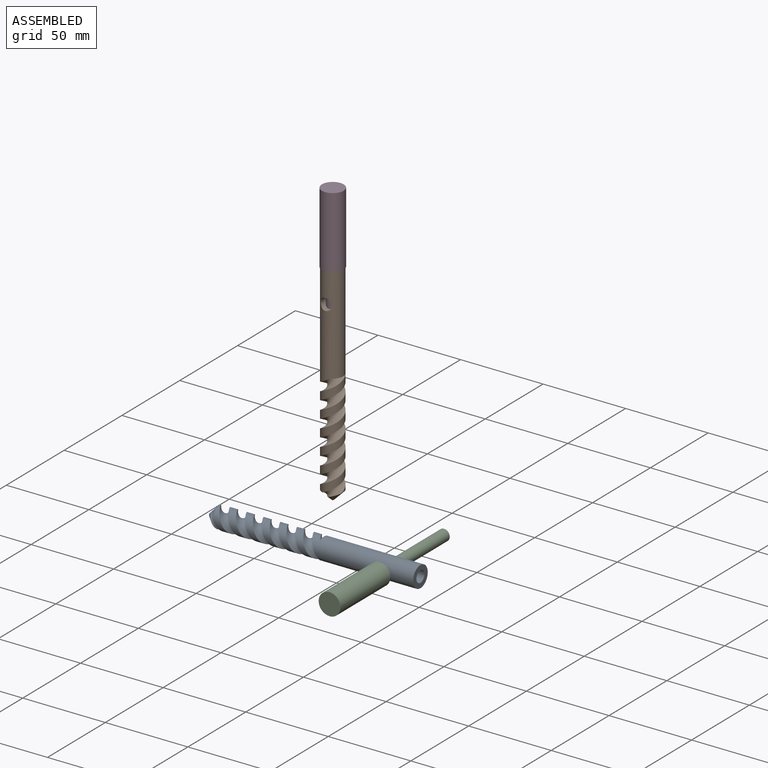
[diagram: assembled view]
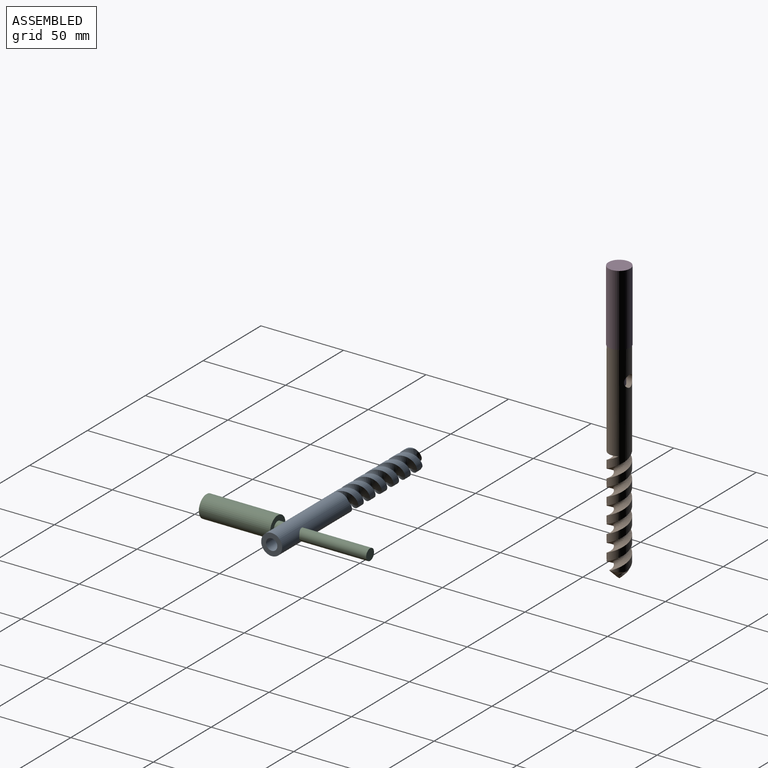
[diagram: assembled view, second angle]
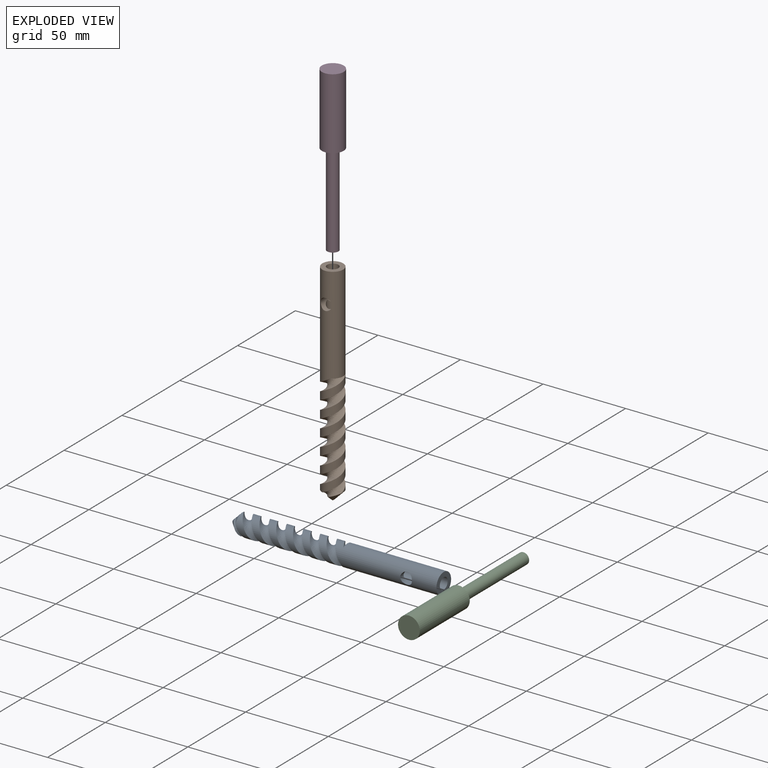
[diagram: exploded view]
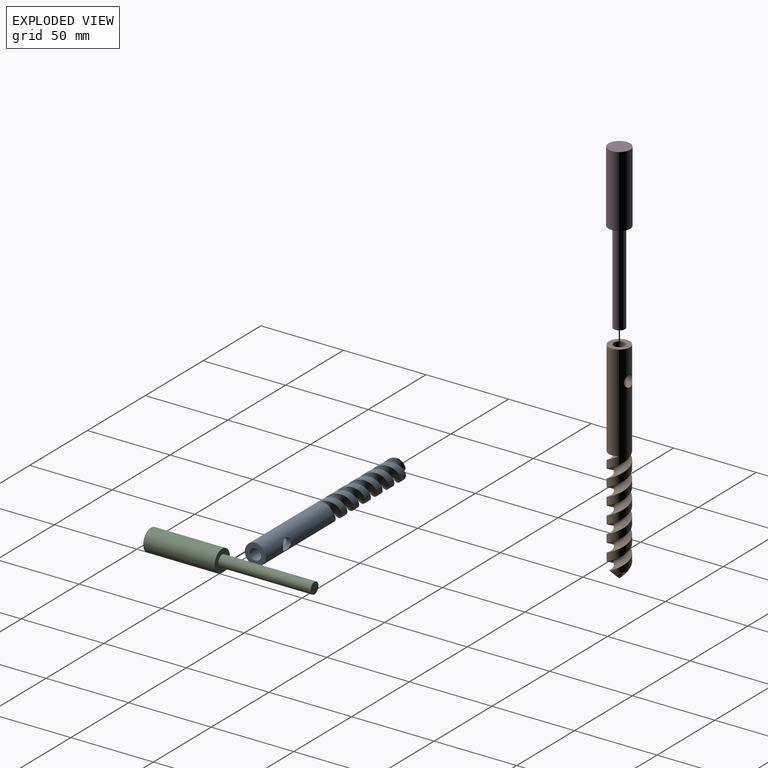
[diagram: exploded view, second angle]
ASSEMBLY  parts=4 mates=3
PART A: 20 faces, bbox 14.4x13.9x128.2 mm
  f0: cylinder r=6.35mm len=75.9mm, axis (0,0,-1), area 2435.3mm2, adj f1,f4,f7,f8,f9,f10,f11,f12
  f1: cylinder r=6.35mm len=25.1mm, axis (0,0,-1), area 190.6mm2, adj f0,f2,f10,f12
  f2: cylinder r=6.35mm len=25.1mm, axis (0,0,-1), area 190.6mm2, adj f1,f3,f10,f12
  f3: cylinder r=6.35mm len=12.52mm, axis (0,0,-1), area 72.9mm2, adj f2,f10,f12,f14
  f4: cylinder r=6.35mm len=25.1mm, axis (0,0,-1), area 190.6mm2, adj f0,f5,f9,f13
  f5: cylinder r=6.35mm len=25.1mm, axis (0,0,-1), area 190.6mm2, adj f4,f6,f9,f13
  f6: cylinder r=6.35mm len=20.32mm, axis (0,0,-1), area 168.1mm2, adj f5,f9,f13,f14
  f7: plane 12.7x12.7mm, normal (0,0,1), area 89.7mm2, adj f0,f15
  f8: plane 9.22x5.3mm, normal (0,0,-1), area 25mm2, adj f0,f9,f10
  f9: bspline ~69.09x13.32mm, area 588.3mm2, adj f0,f4,f5,f6,f8,f10,f14
  f10: bspline ~69.09x14.19mm, area 423.9mm2, adj f0,f1,f2,f3,f8,f9,f14
  f11: plane 9.22x5.3mm, normal (0,0,-1), area 25mm2, adj f0,f12,f13
  f12: bspline ~69.09x13.32mm, area 588.3mm2, adj f0,f1,f2,f3,f11,f13,f14
  f13: bspline ~69.09x14.19mm, area 423.9mm2, adj f0,f4,f5,f6,f11,f12,f14
  f14: cone r=6.35mm half-angle=45deg, axis (0,0,1), area 101.3mm2, adj f3,f6,f9,f10,f12,f13,f19
  f15: cylinder r=3.43mm len=17.43mm, axis (0,0,1), area 375.5mm2, adj f7,f16
  f16: cylinder r=3.56mm len=12.7mm, axis (0,-1,0), area 200.6mm2, adj f0,f15,f18
  f17: plane 6.86x6.86mm, normal (0,0,1), area 36.9mm2, adj f18
  f18: cylinder r=3.43mm len=36.85mm, axis (0,0,1), area 751.6mm2, adj f16,f17
  f19: cone r=0mm half-angle=50.9deg, axis (0,0,1), area 6.6mm2, adj f14
PART B: same geometry as A
PART C: 5 faces, bbox 99.1x13.2x13.2 mm
  f0: cylinder r=3.43mm len=55.88mm, axis (1,0,0), area 1203.9mm2, adj f1,f4
  f1: plane 6.86x6.86mm, normal (-1,0,0), area 36.9mm2, adj f0
  f2: cylinder r=6.6mm len=43.2mm, axis (-1,0,0), area 1792.5mm2, adj f3,f4
  f3: plane 13.21x13.21mm, normal (1,0,0), area 137mm2, adj f2
  f4: plane 13.21x13.21mm, normal (-1,0,0), area 100.1mm2, adj f0,f2
PART D: same geometry as C
PLACE A rot(axis=(0,1,0),90deg) t=(-144.34,4.49,-9.25)mm
PLACE B t=(-151.88,120.82,-46.91)mm
PLACE C rot(axis=(0,0,-1),90deg) t=(-35.71,-4.66,-9.25)mm fixed
PLACE D rot(axis=(0.71,0,0.71),180deg) t=(-151.88,120.82,80.09)mm fixed
MATE cylindrical B.f0 <-> D.f2  axis (0,0,1) through (-151.88,120.82,80.09)mm
MATE slider D.f0 <-> B.f0  axis (0,0,1) through (-151.88,120.82,52.15)mm
MATE slider C.f0 <-> A.f16  axis (0,-1,0) through (-35.71,23.28,-9.25)mm
